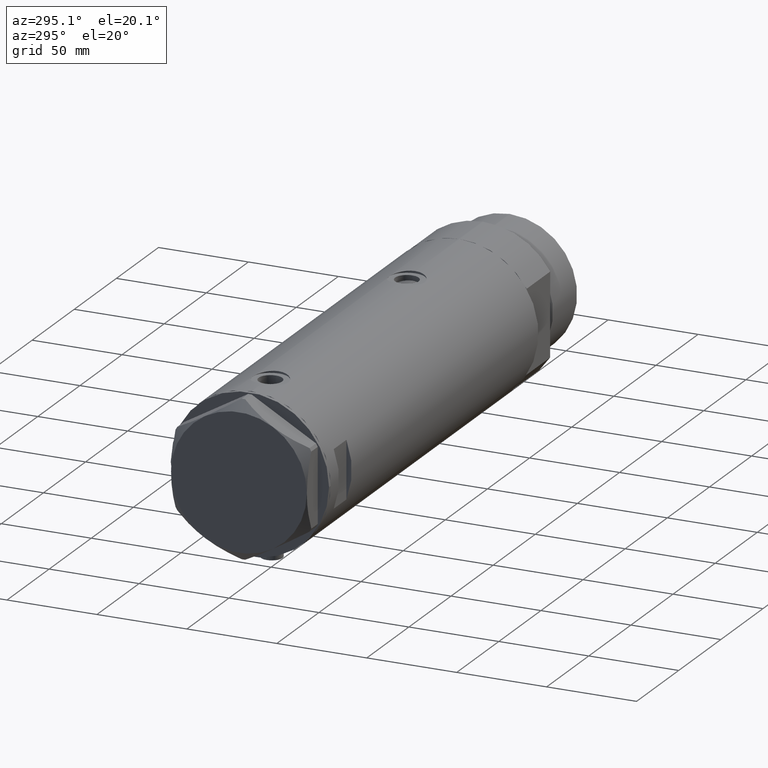
[diagram: clean part render]
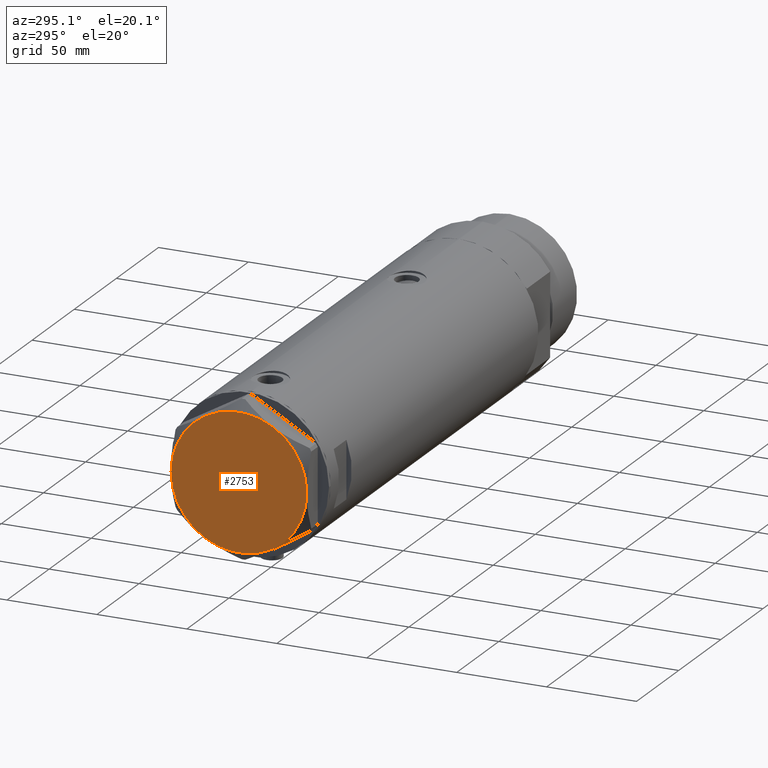
[diagram: same view with one face highlighted and labeled with its STEP entity id]
A machine part, auxiliary view. The second image highlights one B-rep face of the part: STEP entity #2753.
In plain terms, the highlighted planar face has unit normal (-1, -0, 0).
Its self-contained STEP definition (entity closure, byte-faithful):
#227 = CARTESIAN_POINT ( 'NONE',  ( 18.87499999999998579, -32.69245899286256218, 13.00000000000000000 ) ) ;
#251 = DIRECTION ( 'NONE',  ( 0.000000000000000000, 0.000000000000000000, 1.000000000000000000 ) ) ;
#258 = PLANE ( 'NONE',  #2235 ) ;
#322 = EDGE_CURVE ( 'NONE', #4030, #347, #412, .T. ) ;
#347 = VERTEX_POINT ( 'NONE', #1330 ) ;
#367 = CARTESIAN_POINT ( 'NONE',  ( 0.000000000000000000, 0.000000000000000000, 13.00000000000000000 ) ) ;
#412 = CIRCLE ( 'NONE', #1302, 37.75000000000000000 ) ;
#706 = CARTESIAN_POINT ( 'NONE',  ( 18.87500000000000000, 32.69245899286255508, 13.00000000000000000 ) ) ;
#724 = DIRECTION ( 'NONE',  ( 0.000000000000000000, 0.000000000000000000, 1.000000000000000000 ) ) ;
#939 = CARTESIAN_POINT ( 'NONE',  ( 0.000000000000000000, 0.000000000000000000, 13.00000000000000000 ) ) ;
#976 = EDGE_CURVE ( 'NONE', #2363, #1242, #4378, .T. ) ;
#1066 = CARTESIAN_POINT ( 'NONE',  ( 0.000000000000000000, 0.000000000000000000, 13.00000000000000000 ) ) ;
#1135 = CARTESIAN_POINT ( 'NONE',  ( 37.75000000000000711, 1.802777518484591547E-14, 13.00000000000000000 ) ) ;
#1147 = EDGE_CURVE ( 'NONE', #347, #2189, #2236, .T. ) ;
#1161 = CARTESIAN_POINT ( 'NONE',  ( -18.87499999999999645, 32.69245899286256218, 13.00000000000000000 ) ) ;
#1242 = VERTEX_POINT ( 'NONE', #1135 ) ;
#1251 = AXIS2_PLACEMENT_3D ( 'NONE', #2450, #1732, #3126 ) ;
#1301 = DIRECTION ( 'NONE',  ( 1.000000000000000000, 0.000000000000000000, 0.000000000000000000 ) ) ;
#1302 = AXIS2_PLACEMENT_3D ( 'NONE', #2403, #1726, #1301 ) ;
#1330 = CARTESIAN_POINT ( 'NONE',  ( -37.75000000000000000, -1.201851678989727067E-14, 13.00000000000000000 ) ) ;
#1392 = CIRCLE ( 'NONE', #2923, 37.75000000000000000 ) ;
#1610 = FACE_OUTER_BOUND ( 'NONE', #3802, .T. ) ;
#1726 = DIRECTION ( 'NONE',  ( 0.000000000000000000, 0.000000000000000000, 1.000000000000000000 ) ) ;
#1732 = DIRECTION ( 'NONE',  ( 0.000000000000000000, 0.000000000000000000, 1.000000000000000000 ) ) ;
#2090 = ORIENTED_EDGE ( 'NONE', *, *, #1147, .T. ) ;
#2189 = VERTEX_POINT ( 'NONE', #3275 ) ;
#2235 = AXIS2_PLACEMENT_3D ( 'NONE', #939, #3001, #2318 ) ;
#2236 = CIRCLE ( 'NONE', #3346, 37.75000000000000000 ) ;
#2318 = DIRECTION ( 'NONE',  ( 1.000000000000000000, 0.000000000000000000, -0.000000000000000000 ) ) ;
#2322 = CIRCLE ( 'NONE', #1251, 37.75000000000000000 ) ;
#2363 = VERTEX_POINT ( 'NONE', #227 ) ;
#2403 = CARTESIAN_POINT ( 'NONE',  ( 0.000000000000000000, 0.000000000000000000, 13.00000000000000000 ) ) ;
#2439 = ORIENTED_EDGE ( 'NONE', *, *, #2475, .T. ) ;
#2450 = CARTESIAN_POINT ( 'NONE',  ( 0.000000000000000000, 0.000000000000000000, 13.00000000000000000 ) ) ;
#2470 = DIRECTION ( 'NONE',  ( 1.000000000000000000, 0.000000000000000000, 0.000000000000000000 ) ) ;
#2475 = EDGE_CURVE ( 'NONE', #1242, #4440, #3717, .T. ) ;
#2485 = DIRECTION ( 'NONE',  ( 1.000000000000000000, 0.000000000000000000, 0.000000000000000000 ) ) ;
#2662 = CARTESIAN_POINT ( 'NONE',  ( 0.000000000000000000, 0.000000000000000000, 13.00000000000000000 ) ) ;
#2717 = ORIENTED_EDGE ( 'NONE', *, *, #976, .T. ) ;
#2753 = ADVANCED_FACE ( 'NONE', ( #1610 ), #258, .T. ) ;
#2828 = CARTESIAN_POINT ( 'NONE',  ( 0.000000000000000000, 0.000000000000000000, 13.00000000000000000 ) ) ;
#2923 = AXIS2_PLACEMENT_3D ( 'NONE', #2828, #724, #2470 ) ;
#2963 = DIRECTION ( 'NONE',  ( 1.000000000000000000, 0.000000000000000000, 0.000000000000000000 ) ) ;
#2983 = AXIS2_PLACEMENT_3D ( 'NONE', #2662, #251, #2963 ) ;
#2999 = ORIENTED_EDGE ( 'NONE', *, *, #322, .T. ) ;
#3001 = DIRECTION ( 'NONE',  ( 0.000000000000000000, 0.000000000000000000, 1.000000000000000000 ) ) ;
#3126 = DIRECTION ( 'NONE',  ( 1.000000000000000000, 0.000000000000000000, 0.000000000000000000 ) ) ;
#3275 = CARTESIAN_POINT ( 'NONE',  ( -18.87499999999999645, -32.69245899286255508, 13.00000000000000000 ) ) ;
#3346 = AXIS2_PLACEMENT_3D ( 'NONE', #1066, #4165, #4522 ) ;
#3511 = ORIENTED_EDGE ( 'NONE', *, *, #3633, .T. ) ;
#3628 = ORIENTED_EDGE ( 'NONE', *, *, #4454, .T. ) ;
#3633 = EDGE_CURVE ( 'NONE', #4440, #4030, #1392, .T. ) ;
#3717 = CIRCLE ( 'NONE', #3871, 37.75000000000000000 ) ;
#3802 = EDGE_LOOP ( 'NONE', ( #2717, #2439, #3511, #2999, #2090, #3628 ) ) ;
#3871 = AXIS2_PLACEMENT_3D ( 'NONE', #367, #4192, #2485 ) ;
#4030 = VERTEX_POINT ( 'NONE', #1161 ) ;
#4165 = DIRECTION ( 'NONE',  ( 0.000000000000000000, 0.000000000000000000, 1.000000000000000000 ) ) ;
#4192 = DIRECTION ( 'NONE',  ( 0.000000000000000000, 0.000000000000000000, 1.000000000000000000 ) ) ;
#4378 = CIRCLE ( 'NONE', #2983, 37.75000000000000000 ) ;
#4440 = VERTEX_POINT ( 'NONE', #706 ) ;
#4454 = EDGE_CURVE ( 'NONE', #2189, #2363, #2322, .T. ) ;
#4522 = DIRECTION ( 'NONE',  ( 1.000000000000000000, 0.000000000000000000, 0.000000000000000000 ) ) ;